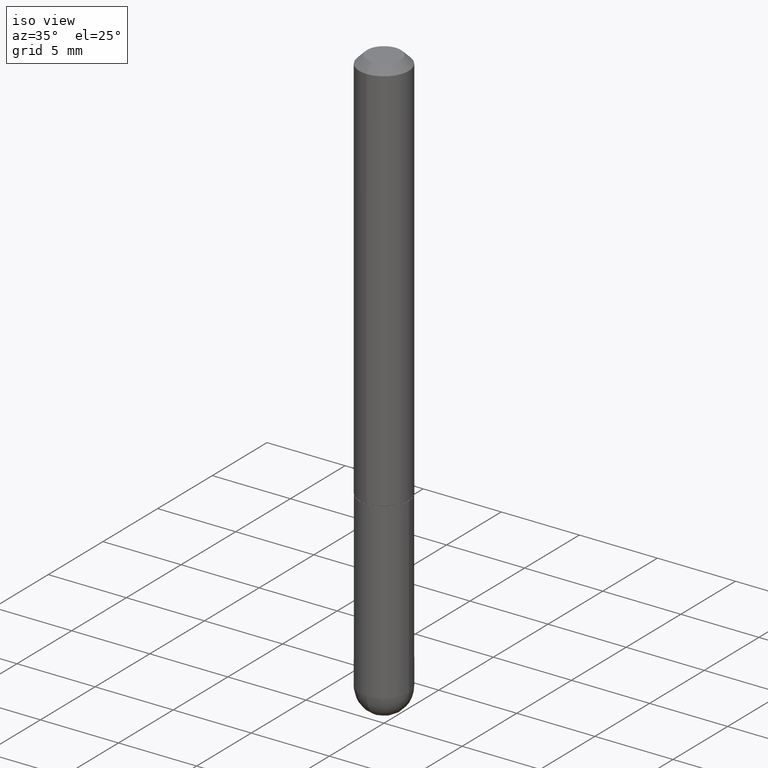
[diagram: clean part render]
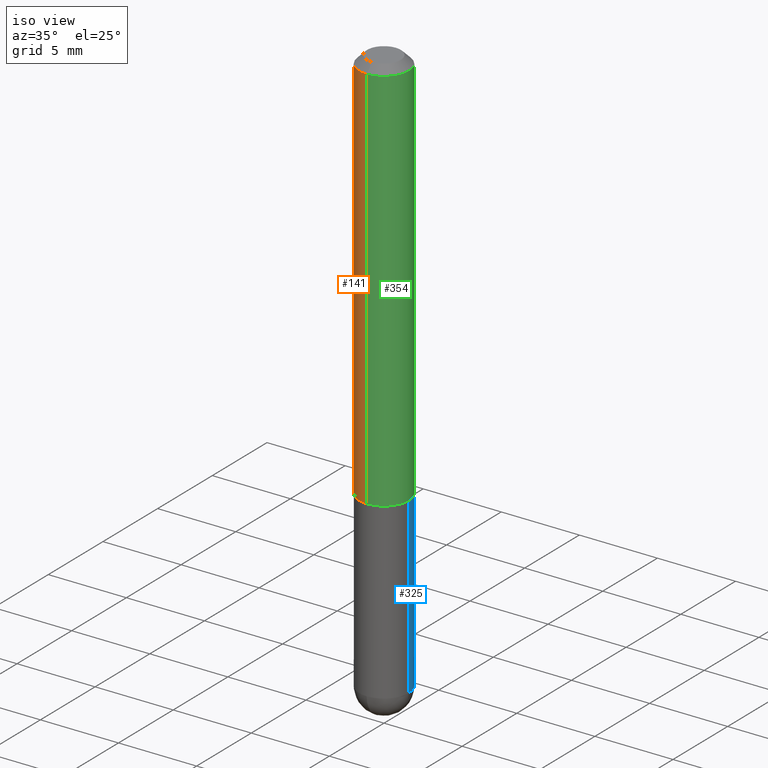
[diagram: same view with three faces highlighted in distinct colors, each labeled with its STEP entity id]
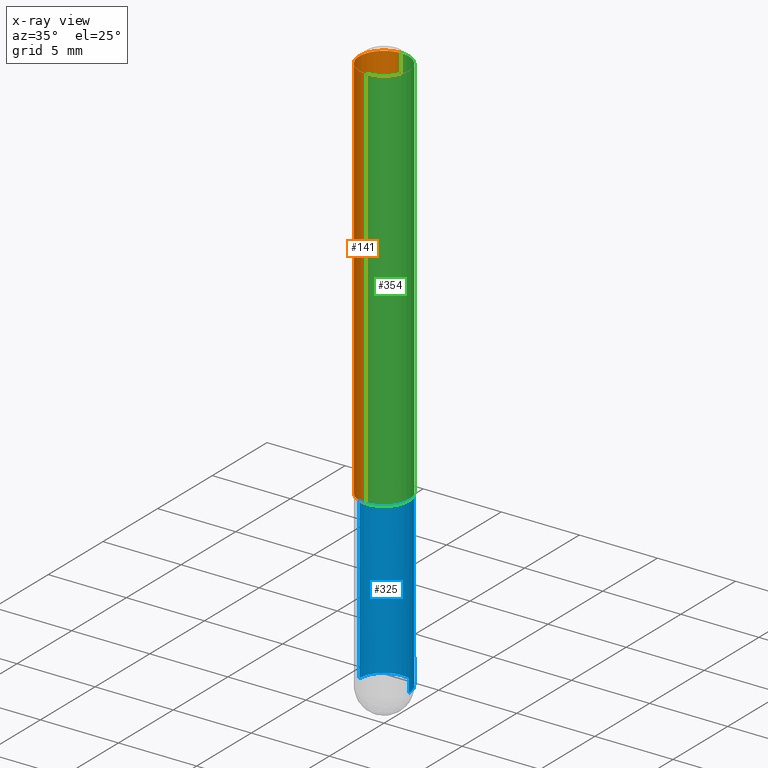
[diagram: x-ray of the same camera — body ghosted, the three highlighted faces saturated]
A machine part, iso view with three faces highlighted in distinct colors.
The next image is the same camera in x-ray (body ghosted, the three faces saturated) — at least one of them is partly hidden behind the body in this view.
Their STEP definitions:

[orange] entity #141 — the highlighted cylindrical surface (edge-blend (fillet) strip) has radius 1.5875 mm, axis along (-0, 0, 1).
#3 = DIRECTION ( 'NONE',  ( -6.982962677686265133E-15, -1.000000000000000000, 4.370956789862812472E-15 ) ) ;
#22 = DIRECTION ( 'NONE',  ( -6.982962677686265922E-15, -1.000000000000000000, 3.551402391763545142E-15 ) ) ;
#28 = CARTESIAN_POINT ( 'NONE',  ( 4.440892098500628134E-16, 0.06250000000000002776, -2.202783378008317665E-16 ) ) ;
#29 = CARTESIAN_POINT ( 'NONE',  ( 2.420022091041974719E-29, -3.520928951408492603E-15, -0.9989999999999998881 ) ) ;
#52 = LINE ( 'NONE', #28, #253 ) ;
#94 = CARTESIAN_POINT ( 'NONE',  ( -4.364351673553918666E-16, -0.06250000000000002776, 2.202783378008317665E-16 ) ) ;
#106 = AXIS2_PLACEMENT_3D ( 'NONE', #270, #368, #22 ) ;
#109 = EDGE_CURVE ( 'NONE', #295, #302, #326, .T. ) ;
#118 = DIRECTION ( 'NONE',  ( -2.422444535577552536E-29, 3.524453404813306686E-15, 1.000000000000000000 ) ) ;
#119 = AXIS2_PLACEMENT_3D ( 'NONE', #29, #344, #3 ) ;
#130 = ORIENTED_EDGE ( 'NONE', *, *, #293, .T. ) ;
#141 = ADVANCED_FACE ( 'NONE', ( #235 ), #366, .T. ) ;
#149 = EDGE_CURVE ( 'NONE', #261, #295, #52, .T. ) ;
#192 = EDGE_CURVE ( 'NONE', #261, #259, #272, .T. ) ;
#198 = EDGE_LOOP ( 'NONE', ( #334, #390, #130, #224 ) ) ;
#206 = DIRECTION ( 'NONE',  ( -6.982962677686266711E-15, -1.000000000000000000, 3.524453404813306686E-15 ) ) ;
#224 = ORIENTED_EDGE ( 'NONE', *, *, #109, .F. ) ;
#235 = FACE_OUTER_BOUND ( 'NONE', #198, .T. ) ;
#236 = DIRECTION ( 'NONE',  ( -2.422444535577552536E-29, 3.524453404813306292E-15, 1.000000000000000000 ) ) ;
#241 = VECTOR ( 'NONE', #321, 39.37007874015748143 ) ;
#253 = VECTOR ( 'NONE', #118, 39.37007874015748143 ) ;
#259 = VERTEX_POINT ( 'NONE', #411 ) ;
#261 = VERTEX_POINT ( 'NONE', #282 ) ;
#270 = CARTESIAN_POINT ( 'NONE',  ( 4.844889071155120976E-31, -7.048906809626635313E-17, -0.02000000000000006981 ) ) ;
#272 = CIRCLE ( 'NONE', #119, 0.06250000000000012490 ) ;
#282 = CARTESIAN_POINT ( 'NONE',  ( 4.440892098500754352E-16, 0.06249999999999659994, -0.9990000000000002212 ) ) ;
#293 = EDGE_CURVE ( 'NONE', #259, #302, #378, .T. ) ;
#295 = VERTEX_POINT ( 'NONE', #346 ) ;
#302 = VERTEX_POINT ( 'NONE', #349 ) ;
#321 = DIRECTION ( 'NONE',  ( -2.422444535577552536E-29, 3.524453404813306686E-15, 1.000000000000000000 ) ) ;
#326 = CIRCLE ( 'NONE', #106, 0.06249999999999995143 ) ;
#334 = ORIENTED_EDGE ( 'NONE', *, *, #149, .F. ) ;
#338 = CARTESIAN_POINT ( 'NONE',  ( 0.000000000000000000, 0.000000000000000000, 0.000000000000000000 ) ) ;
#344 = DIRECTION ( 'NONE',  ( -2.422444535577552536E-29, 3.524453404813306292E-15, 1.000000000000000000 ) ) ;
#346 = CARTESIAN_POINT ( 'NONE',  ( 4.364351673553917187E-16, 0.06249999999999988204, -0.02000000000000029185 ) ) ;
#349 = CARTESIAN_POINT ( 'NONE',  ( -4.287811248607198352E-16, -0.06250000000000001388, -0.01999999999999984776 ) ) ;
#350 = AXIS2_PLACEMENT_3D ( 'NONE', #338, #236, #206 ) ;
#366 = CYLINDRICAL_SURFACE ( 'NONE', #350, 0.06250000000000002776 ) ;
#368 = DIRECTION ( 'NONE',  ( -2.422444535577552536E-29, 3.524453404813306292E-15, 1.000000000000000000 ) ) ;
#378 = LINE ( 'NONE', #94, #241 ) ;
#390 = ORIENTED_EDGE ( 'NONE', *, *, #192, .T. ) ;
#411 = CARTESIAN_POINT ( 'NONE',  ( -4.364351673553682501E-16, -0.06250000000000363598, -0.9989999999999996660 ) ) ;

[blue] entity #325 — the highlighted cylindrical surface (edge-blend (fillet) strip) has radius 1.5875 mm, axis along (-0, 0, 1).
#31 = EDGE_CURVE ( 'NONE', #396, #68, #162, .T. ) ;
#36 = VECTOR ( 'NONE', #210, 39.37007874015748143 ) ;
#61 = CIRCLE ( 'NONE', #393, 0.06249999999999995143 ) ;
#68 = VERTEX_POINT ( 'NONE', #89 ) ;
#71 = DIRECTION ( 'NONE',  ( 1.000000000000000000, -6.982962677686267499E-15, 4.876176775795936353E-29 ) ) ;
#74 = DIRECTION ( 'NONE',  ( -2.445468806185136597E-29, 3.491481338843145583E-15, 1.000000000000000000 ) ) ;
#77 = CARTESIAN_POINT ( 'NONE',  ( 0.06249999999999995143, -4.691678049070475040E-15, -1.437500000000000222 ) ) ;
#83 = EDGE_LOOP ( 'NONE', ( #363, #256, #388, #394, #355 ) ) ;
#86 = DIRECTION ( 'NONE',  ( 1.000000000000000000, -6.982962677686269077E-15, 0.000000000000000000 ) ) ;
#89 = CARTESIAN_POINT ( 'NONE',  ( 4.364351673554256397E-16, 0.06249999999999480971, -1.437500000000000444 ) ) ;
#97 = CARTESIAN_POINT ( 'NONE',  ( -0.06250000000000001388, -3.811153671865021543E-15, -0.9999999999999996669 ) ) ;
#115 = CARTESIAN_POINT ( 'NONE',  ( 0.06250000000000001388, -3.927916506198536858E-15, -0.9999999999999996669 ) ) ;
#117 = DIRECTION ( 'NONE',  ( -2.445468806185136877E-29, 3.491481338843145188E-15, 1.000000000000000000 ) ) ;
#120 = EDGE_CURVE ( 'NONE', #136, #265, #251, .T. ) ;
#136 = VERTEX_POINT ( 'NONE', #115 ) ;
#143 = CARTESIAN_POINT ( 'NONE',  ( -0.06249999999999997918, 4.440892098500624683E-16, -3.074334431409315413E-30 ) ) ;
#146 = CARTESIAN_POINT ( 'NONE',  ( 0.000000000000000000, 0.000000000000000000, 0.000000000000000000 ) ) ;
#150 = CARTESIAN_POINT ( 'NONE',  ( -0.06249999999999995143, -3.811153671865021543E-15, -1.437500000000000222 ) ) ;
#162 = CIRCLE ( 'NONE', #217, 0.06249999999999995143 ) ;
#168 = EDGE_CURVE ( 'NONE', #299, #265, #207, .T. ) ;
#170 = DIRECTION ( 'NONE',  ( -2.445468806185136597E-29, 3.491481338843145583E-15, 1.000000000000000000 ) ) ;
#176 = FACE_OUTER_BOUND ( 'NONE', #83, .T. ) ;
#178 = AXIS2_PLACEMENT_3D ( 'NONE', #146, #410, #71 ) ;
#181 = EDGE_CURVE ( 'NONE', #396, #136, #370, .T. ) ;
#196 = DIRECTION ( 'NONE',  ( 1.000000000000000000, -6.982962677686268288E-15, 0.000000000000000000 ) ) ;
#207 = LINE ( 'NONE', #143, #384 ) ;
#210 = DIRECTION ( 'NONE',  ( -2.445468806185136877E-29, 3.491481338843145188E-15, 1.000000000000000000 ) ) ;
#217 = AXIS2_PLACEMENT_3D ( 'NONE', #232, #170, #307 ) ;
#225 = CARTESIAN_POINT ( 'NONE',  ( 3.515361408891134418E-29, -5.019004424587023131E-15, -1.437500000000000222 ) ) ;
#232 = CARTESIAN_POINT ( 'NONE',  ( 3.515361408891134418E-29, -5.019004424587023131E-15, -1.437500000000000222 ) ) ;
#240 = AXIS2_PLACEMENT_3D ( 'NONE', #364, #278, #86 ) ;
#251 = CIRCLE ( 'NONE', #240, 0.06250000000000001388 ) ;
#256 = ORIENTED_EDGE ( 'NONE', *, *, #168, .T. ) ;
#265 = VERTEX_POINT ( 'NONE', #97 ) ;
#278 = DIRECTION ( 'NONE',  ( -2.445468806185136597E-29, 3.491481338843145583E-15, 1.000000000000000000 ) ) ;
#299 = VERTEX_POINT ( 'NONE', #150 ) ;
#307 = DIRECTION ( 'NONE',  ( 1.000000000000000000, -6.982962677686268288E-15, 0.000000000000000000 ) ) ;
#311 = CARTESIAN_POINT ( 'NONE',  ( 0.06249999999999997918, -4.364351673553915708E-16, 3.047610484872459170E-30 ) ) ;
#312 = CYLINDRICAL_SURFACE ( 'NONE', #178, 0.06249999999999997918 ) ;
#325 = ADVANCED_FACE ( 'NONE', ( #176 ), #312, .T. ) ;
#355 = ORIENTED_EDGE ( 'NONE', *, *, #31, .T. ) ;
#363 = ORIENTED_EDGE ( 'NONE', *, *, #391, .T. ) ;
#364 = CARTESIAN_POINT ( 'NONE',  ( 2.445468806185136036E-29, -3.491481338843144399E-15, -0.9999999999999996669 ) ) ;
#370 = LINE ( 'NONE', #311, #36 ) ;
#384 = VECTOR ( 'NONE', #117, 39.37007874015748143 ) ;
#388 = ORIENTED_EDGE ( 'NONE', *, *, #120, .F. ) ;
#391 = EDGE_CURVE ( 'NONE', #68, #299, #61, .T. ) ;
#393 = AXIS2_PLACEMENT_3D ( 'NONE', #225, #74, #196 ) ;
#394 = ORIENTED_EDGE ( 'NONE', *, *, #181, .F. ) ;
#396 = VERTEX_POINT ( 'NONE', #77 ) ;
#410 = DIRECTION ( 'NONE',  ( -2.445468806185136597E-29, 3.491481338843145583E-15, 1.000000000000000000 ) ) ;

[green] entity #354 — the highlighted cylindrical surface (edge-blend (fillet) strip) has radius 1.5875 mm, axis along (-0, 0, 1).
#8 = CIRCLE ( 'NONE', #233, 0.06249999999999995143 ) ;
#28 = CARTESIAN_POINT ( 'NONE',  ( 4.440892098500628134E-16, 0.06250000000000002776, -2.202783378008317665E-16 ) ) ;
#40 = CARTESIAN_POINT ( 'NONE',  ( 0.000000000000000000, 0.000000000000000000, 0.000000000000000000 ) ) ;
#52 = LINE ( 'NONE', #28, #253 ) ;
#55 = AXIS2_PLACEMENT_3D ( 'NONE', #40, #131, #252 ) ;
#94 = CARTESIAN_POINT ( 'NONE',  ( -4.364351673553918666E-16, -0.06250000000000002776, 2.202783378008317665E-16 ) ) ;
#98 = DIRECTION ( 'NONE',  ( -2.422444535577552536E-29, 3.524453404813306292E-15, 1.000000000000000000 ) ) ;
#99 = CIRCLE ( 'NONE', #145, 0.06250000000000012490 ) ;
#104 = DIRECTION ( 'NONE',  ( -2.422444535577552536E-29, 3.524453404813306292E-15, 1.000000000000000000 ) ) ;
#118 = DIRECTION ( 'NONE',  ( -2.422444535577552536E-29, 3.524453404813306686E-15, 1.000000000000000000 ) ) ;
#126 = ORIENTED_EDGE ( 'NONE', *, *, #387, .F. ) ;
#131 = DIRECTION ( 'NONE',  ( -2.422444535577552536E-29, 3.524453404813306292E-15, 1.000000000000000000 ) ) ;
#132 = ORIENTED_EDGE ( 'NONE', *, *, #293, .F. ) ;
#145 = AXIS2_PLACEMENT_3D ( 'NONE', #148, #98, #179 ) ;
#148 = CARTESIAN_POINT ( 'NONE',  ( 2.420022091041974719E-29, -3.520928951408492603E-15, -0.9989999999999998881 ) ) ;
#149 = EDGE_CURVE ( 'NONE', #261, #295, #52, .T. ) ;
#156 = ORIENTED_EDGE ( 'NONE', *, *, #237, .T. ) ;
#179 = DIRECTION ( 'NONE',  ( -6.982962677686265133E-15, -1.000000000000000000, 4.370956789862812472E-15 ) ) ;
#223 = CYLINDRICAL_SURFACE ( 'NONE', #55, 0.06250000000000002776 ) ;
#226 = ORIENTED_EDGE ( 'NONE', *, *, #149, .T. ) ;
#233 = AXIS2_PLACEMENT_3D ( 'NONE', #289, #104, #392 ) ;
#237 = EDGE_CURVE ( 'NONE', #259, #261, #99, .T. ) ;
#241 = VECTOR ( 'NONE', #321, 39.37007874015748143 ) ;
#252 = DIRECTION ( 'NONE',  ( -6.982962677686266711E-15, -1.000000000000000000, 3.524453404813306686E-15 ) ) ;
#253 = VECTOR ( 'NONE', #118, 39.37007874015748143 ) ;
#259 = VERTEX_POINT ( 'NONE', #411 ) ;
#261 = VERTEX_POINT ( 'NONE', #282 ) ;
#282 = CARTESIAN_POINT ( 'NONE',  ( 4.440892098500754352E-16, 0.06249999999999659994, -0.9990000000000002212 ) ) ;
#289 = CARTESIAN_POINT ( 'NONE',  ( 4.844889071155120976E-31, -7.048906809626635313E-17, -0.02000000000000006981 ) ) ;
#293 = EDGE_CURVE ( 'NONE', #259, #302, #378, .T. ) ;
#295 = VERTEX_POINT ( 'NONE', #346 ) ;
#302 = VERTEX_POINT ( 'NONE', #349 ) ;
#321 = DIRECTION ( 'NONE',  ( -2.422444535577552536E-29, 3.524453404813306686E-15, 1.000000000000000000 ) ) ;
#329 = EDGE_LOOP ( 'NONE', ( #156, #226, #126, #132 ) ) ;
#346 = CARTESIAN_POINT ( 'NONE',  ( 4.364351673553917187E-16, 0.06249999999999988204, -0.02000000000000029185 ) ) ;
#349 = CARTESIAN_POINT ( 'NONE',  ( -4.287811248607198352E-16, -0.06250000000000001388, -0.01999999999999984776 ) ) ;
#354 = ADVANCED_FACE ( 'NONE', ( #357 ), #223, .T. ) ;
#357 = FACE_OUTER_BOUND ( 'NONE', #329, .T. ) ;
#378 = LINE ( 'NONE', #94, #241 ) ;
#387 = EDGE_CURVE ( 'NONE', #302, #295, #8, .T. ) ;
#392 = DIRECTION ( 'NONE',  ( -6.982962677686265922E-15, -1.000000000000000000, 3.551402391763545142E-15 ) ) ;
#411 = CARTESIAN_POINT ( 'NONE',  ( -4.364351673553682501E-16, -0.06250000000000363598, -0.9989999999999996660 ) ) ;